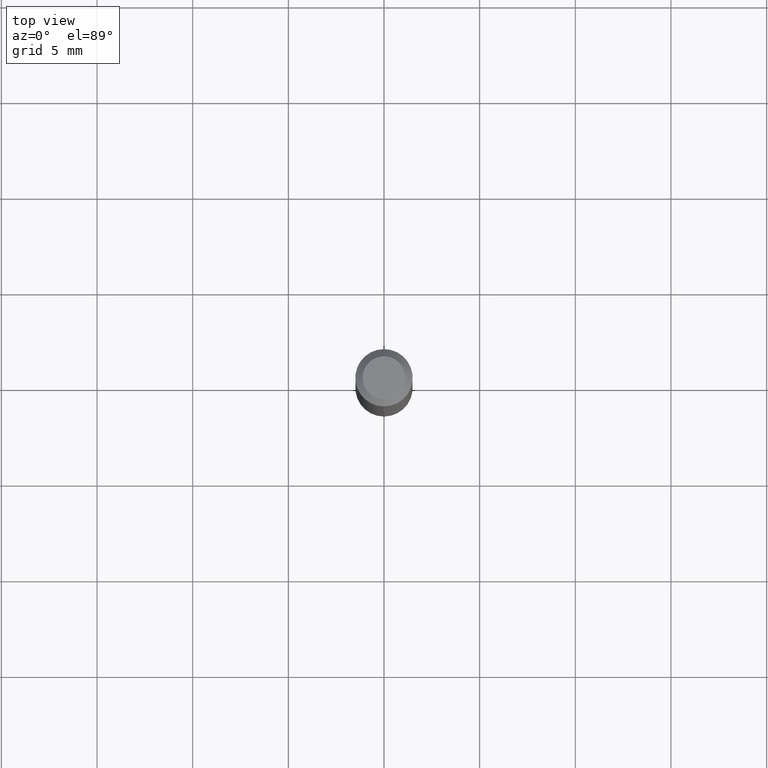
[diagram: clean part render]
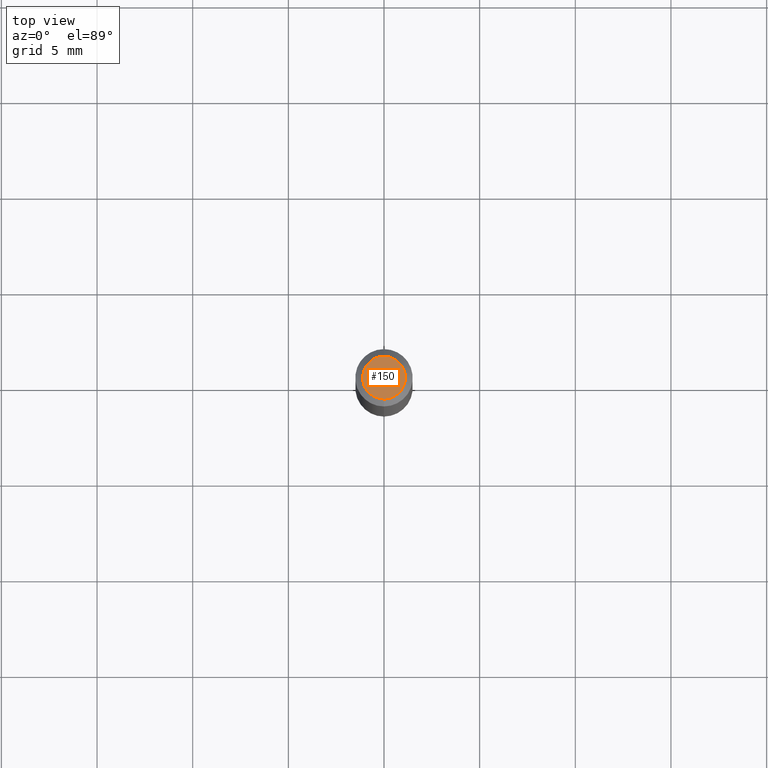
[diagram: same view with one face highlighted and labeled with its STEP entity id]
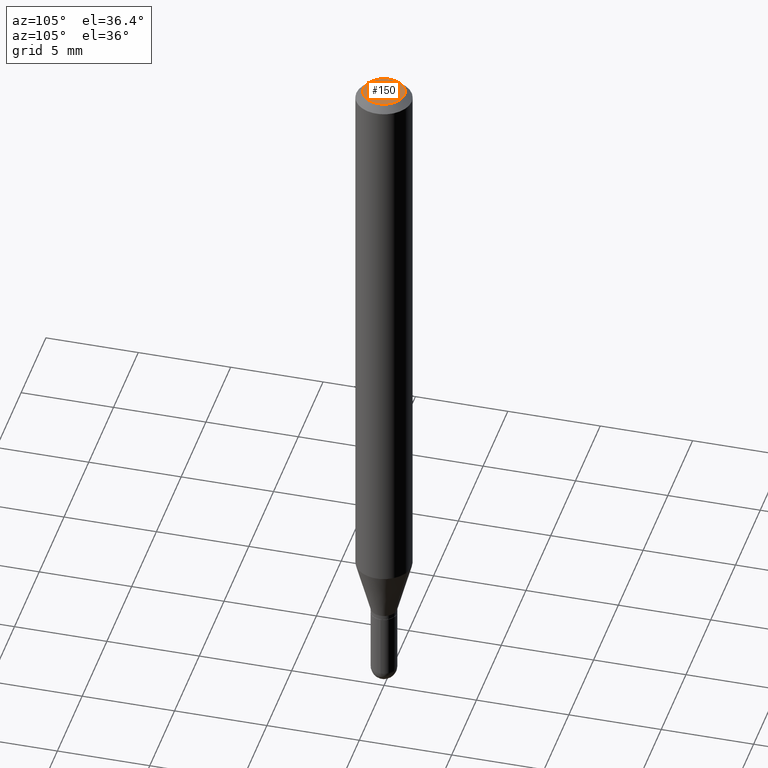
[diagram: same view with one face highlighted and labeled with its STEP entity id]
A machine part, top view. The second image highlights one B-rep face of the part: STEP entity #150.
A second angle (auxiliary view) of the same face is appended — the face is thin or edge-on in the first view.
In plain terms, the highlighted planar face has unit normal (0, -0, -1).
Its self-contained STEP definition (entity closure, byte-faithful):
#4 = CARTESIAN_POINT ( 'NONE',  ( 3.075995059520799729E-16, 0.04404999999999999888, -1.996340688043498133E-16 ) ) ;
#9 = AXIS2_PLACEMENT_3D ( 'NONE', #163, #85, #237 ) ;
#23 = AXIS2_PLACEMENT_3D ( 'NONE', #235, #87, #134 ) ;
#85 = DIRECTION ( 'NONE',  ( -2.445408270153443463E-29, 3.491568029886026969E-15, 1.000000000000000000 ) ) ;
#87 = DIRECTION ( 'NONE',  ( -2.445408270153443463E-29, 3.491568029886026969E-15, 1.000000000000000000 ) ) ;
#134 = DIRECTION ( 'NONE',  ( -6.982962677686265133E-15, -1.000000000000000000, 3.491568029886026969E-15 ) ) ;
#147 = VERTEX_POINT ( 'NONE', #194 ) ;
#150 = ADVANCED_FACE ( 'NONE', ( #464 ), #355, .F. ) ;
#163 = CARTESIAN_POINT ( 'NONE',  ( 2.241485532078428435E-45, -3.200405968515854961E-31, -9.166099417574067524E-17 ) ) ;
#168 = ORIENTED_EDGE ( 'NONE', *, *, #226, .T. ) ;
#194 = CARTESIAN_POINT ( 'NONE',  ( 3.599717260347271507E-16, 0.04404999999999999888, -2.454645658922201879E-16 ) ) ;
#226 = EDGE_CURVE ( 'NONE', #147, #427, #467, .T. ) ;
#235 = CARTESIAN_POINT ( 'NONE',  ( 2.241485532078428435E-45, -3.200405968515854961E-31, -9.166099417574067524E-17 ) ) ;
#237 = DIRECTION ( 'NONE',  ( -6.982962677686265133E-15, -1.000000000000000000, 3.491568029886026969E-15 ) ) ;
#258 = EDGE_CURVE ( 'NONE', #427, #147, #412, .T. ) ;
#269 = CARTESIAN_POINT ( 'NONE',  ( -3.536586717851222218E-16, -0.04404999999999999888, 6.214257754073881279E-17 ) ) ;
#280 = ORIENTED_EDGE ( 'NONE', *, *, #258, .T. ) ;
#353 = DIRECTION ( 'NONE',  ( 2.445408270153443183E-29, -3.491568029886026969E-15, -1.000000000000000000 ) ) ;
#355 = PLANE ( 'NONE',  #385 ) ;
#384 = EDGE_LOOP ( 'NONE', ( #168, #280 ) ) ;
#385 = AXIS2_PLACEMENT_3D ( 'NONE', #4, #353, #474 ) ;
#412 = CIRCLE ( 'NONE', #9, 0.04404999999999999888 ) ;
#427 = VERTEX_POINT ( 'NONE', #269 ) ;
#464 = FACE_OUTER_BOUND ( 'NONE', #384, .T. ) ;
#467 = CIRCLE ( 'NONE', #23, 0.04404999999999999888 ) ;
#474 = DIRECTION ( 'NONE',  ( 6.982962677686265922E-15, 1.000000000000000000, -3.491568029886026969E-15 ) ) ;